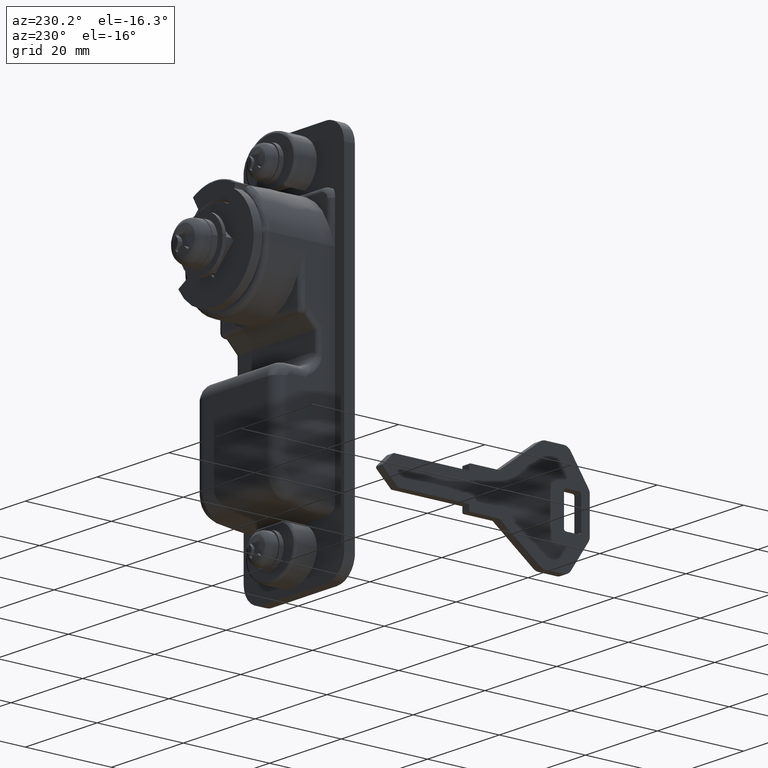
[diagram: clean part render]
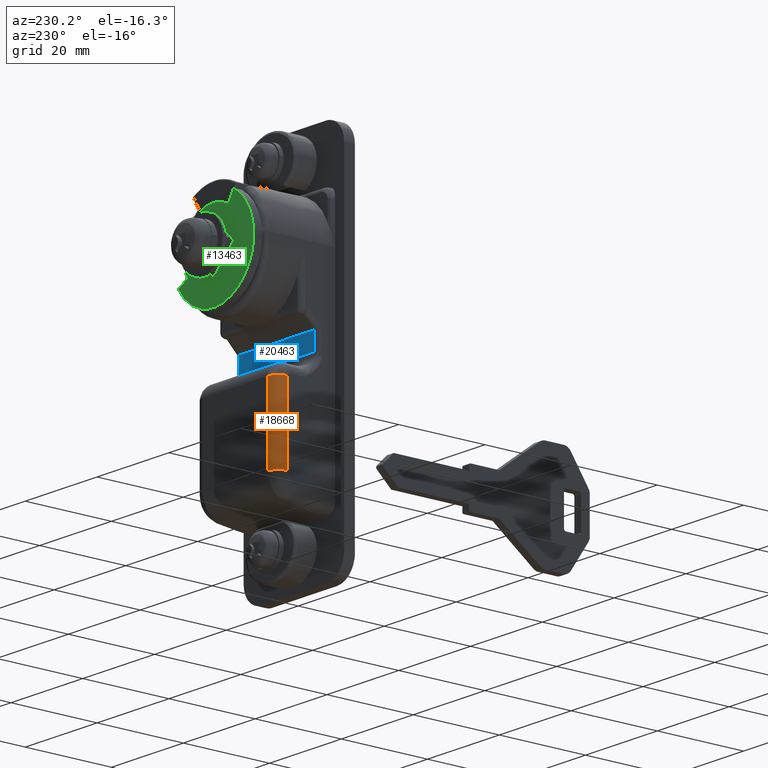
[diagram: same view with three faces highlighted in distinct colors, each labeled with its STEP entity id]
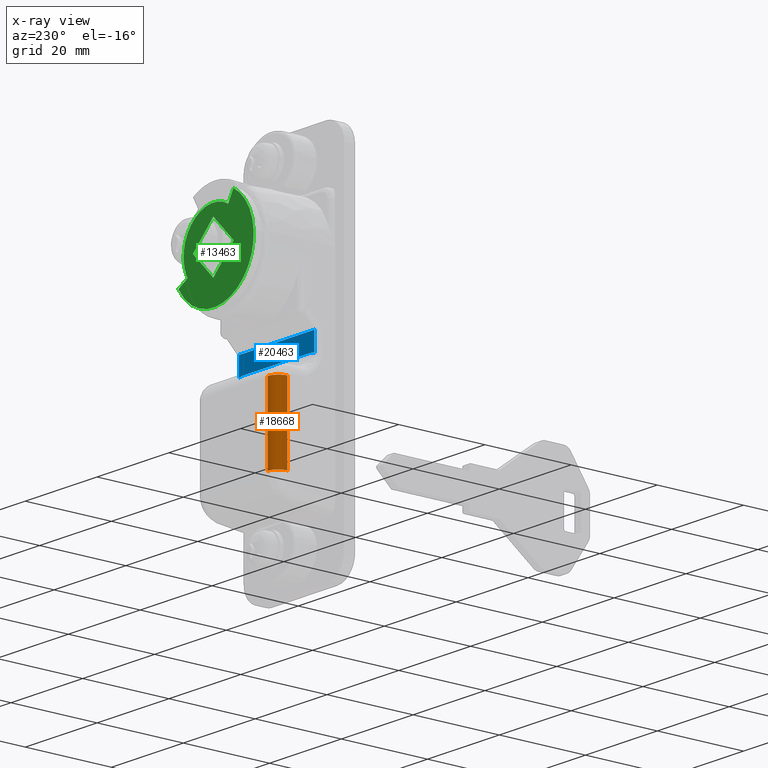
[diagram: x-ray of the same camera — body ghosted, the three highlighted faces saturated]
A machine part, auxiliary view with three faces highlighted in distinct colors.
The next image is the same camera in x-ray (body ghosted, the three faces saturated) — at least one of them is partly hidden behind the body in this view.
Their STEP definitions:

[orange] entity #18668 — the highlighted face is a freeform B-spline surface patch.
#18578=CARTESIAN_POINT('',(14.600000000000000,9.0,-25.0));
#18579=VERTEX_POINT('',#18578);
#18593=CARTESIAN_POINT('',(12.100000000000000,11.500000000000000,-25.0));
#18594=VERTEX_POINT('',#18593);
#18595=CARTESIAN_POINT('',(14.600000000000000,9.0,-25.0));
#18596=CARTESIAN_POINT('',(14.600000000000009,11.500000000000000,-25.0));
#18597=CARTESIAN_POINT('',(12.100000000000000,11.500000000000000,-25.0));
#18605=(BOUNDED_CURVE()B_SPLINE_CURVE(2,(#18595,#18596,#18597),.UNSPECIFIED.,.F.,.U.)CURVE()GEOMETRIC_REPRESENTATION_ITEM()QUASI_UNIFORM_CURVE()RATIONAL_B_SPLINE_CURVE((1.0,0.707106781186548,1.0))REPRESENTATION_ITEM(''));
#18606=EDGE_CURVE('',#18579,#18594,#18605,.T.);
#18624=CARTESIAN_POINT('',(12.034557629230310,11.499143312438891,-43.082447091428243));
#18625=CARTESIAN_POINT('',(12.034557629230310,11.499143312438891,-24.547938822714290));
#18626=CARTESIAN_POINT('',(14.761893971485295,11.570561127989979,-43.082447091428243));
#18627=CARTESIAN_POINT('',(14.761893971485295,11.570561127989979,-24.547938822714297));
#18628=CARTESIAN_POINT('',(14.595336996054669,8.847378651162860,-43.082447091428243));
#18629=CARTESIAN_POINT('',(14.595336996054669,8.847378651162860,-24.547938822714290));
#18637=(BOUNDED_SURFACE()B_SPLINE_SURFACE(1,2,((#18624,#18626,#18628),(#18625,#18627,#18629)),.UNSPECIFIED.,.F.,.F.,.U.)B_SPLINE_SURFACE_WITH_KNOTS((2,2),(3,3),(0.0,18.534508268713950),(0.0,4.400105308918334),.UNSPECIFIED.)GEOMETRIC_REPRESENTATION_ITEM()RATIONAL_B_SPLINE_SURFACE(((1.0,0.675590207615660,1.0),(1.0,0.675590207615660,1.0)))REPRESENTATION_ITEM('')SURFACE());
#18638=CARTESIAN_POINT('',(14.600000000000000,9.0,-42.641411796515349));
#18639=VERTEX_POINT('',#18638);
#18640=CARTESIAN_POINT('',(12.100000000000000,11.500000000000000,-42.641411796515349));
#18641=VERTEX_POINT('',#18640);
#18642=CARTESIAN_POINT('',(14.600000000000000,9.0,-42.641411796515349));
#18643=CARTESIAN_POINT('',(14.600000000000009,11.500000000000000,-42.641411796515349));
#18644=CARTESIAN_POINT('',(12.100000000000000,11.500000000000000,-42.641411796515349));
#18652=(BOUNDED_CURVE()B_SPLINE_CURVE(2,(#18642,#18643,#18644),.UNSPECIFIED.,.F.,.U.)CURVE()GEOMETRIC_REPRESENTATION_ITEM()QUASI_UNIFORM_CURVE()RATIONAL_B_SPLINE_CURVE((1.0,0.707106781186548,1.0))REPRESENTATION_ITEM(''));
#18653=EDGE_CURVE('',#18639,#18641,#18652,.T.);
#18654=ORIENTED_EDGE('',*,*,#18653,.T.);
#18655=CARTESIAN_POINT('',(12.100000000000000,11.500000000000000,-25.0));
#18656=CARTESIAN_POINT('',(12.100000000000000,11.500000000000000,-42.641411796515349));
#18657=QUASI_UNIFORM_CURVE('',1,(#18655,#18656),.UNSPECIFIED.,.F.,.U.);
#18658=EDGE_CURVE('',#18594,#18641,#18657,.T.);
#18659=ORIENTED_EDGE('',*,*,#18658,.F.);
#18660=ORIENTED_EDGE('',*,*,#18606,.F.);
#18661=CARTESIAN_POINT('',(14.600000000000000,9.0,-42.641411796515349));
#18662=CARTESIAN_POINT('',(14.600000000000000,9.0,-25.0));
#18663=QUASI_UNIFORM_CURVE('',1,(#18661,#18662),.UNSPECIFIED.,.F.,.U.);
#18664=EDGE_CURVE('',#18639,#18579,#18663,.T.);
#18665=ORIENTED_EDGE('',*,*,#18664,.F.);
#18666=EDGE_LOOP('',(#18654,#18659,#18660,#18665));
#18667=FACE_OUTER_BOUND('',#18666,.T.);
#18668=ADVANCED_FACE('',(#18667),#18637,.T.);

[blue] entity #20463 — the highlighted face is a freeform B-spline surface patch.
#16731=CARTESIAN_POINT('',(5.0,-10.500000000000000,-19.208497377870799));
#16732=VERTEX_POINT('',#16731);
#16798=CARTESIAN_POINT('',(5.0,-10.500000000000000,-14.950462000000099));
#16799=VERTEX_POINT('',#16798);
#16823=CARTESIAN_POINT('',(5.0,-10.500000000000000,-14.950462000000099));
#16824=CARTESIAN_POINT('',(5.0,-10.500000000000000,-19.208497377870799));
#16825=QUASI_UNIFORM_CURVE('',1,(#16823,#16824),.UNSPECIFIED.,.F.,.U.);
#16826=EDGE_CURVE('',#16799,#16732,#16825,.T.);
#17135=CARTESIAN_POINT('',(5.0,10.500000000000000,-19.208497377870799));
#17136=VERTEX_POINT('',#17135);
#17242=CARTESIAN_POINT('',(5.0,10.500000000000000,-14.950462000000099));
#17243=VERTEX_POINT('',#17242);
#17257=CARTESIAN_POINT('',(5.0,10.500000000000000,-19.208497377870799));
#17258=CARTESIAN_POINT('',(5.0,10.500000000000000,-14.950462000000099));
#17259=QUASI_UNIFORM_CURVE('',1,(#17257,#17258),.UNSPECIFIED.,.F.,.U.);
#17260=EDGE_CURVE('',#17136,#17243,#17259,.T.);
#18811=CARTESIAN_POINT('',(5.0,9.0,-19.0));
#18812=VERTEX_POINT('',#18811);
#18813=CARTESIAN_POINT('',(5.0,9.0,-19.0));
#18814=CARTESIAN_POINT('',(5.000000000000001,9.764490385526335,-19.000000000000004));
#18815=CARTESIAN_POINT('',(5.0,10.500000000000000,-19.208497377870820));
#18823=(BOUNDED_CURVE()B_SPLINE_CURVE(2,(#18813,#18814,#18815),.UNSPECIFIED.,.F.,.U.)CURVE()GEOMETRIC_REPRESENTATION_ITEM()QUASI_UNIFORM_CURVE()RATIONAL_B_SPLINE_CURVE((1.0,0.990477507528987,1.0))REPRESENTATION_ITEM(''));
#18824=EDGE_CURVE('',#18812,#17136,#18823,.T.);
#18856=CARTESIAN_POINT('',(5.0,-9.000000000000130,-19.0));
#18857=VERTEX_POINT('',#18856);
#18879=CARTESIAN_POINT('',(5.0,-9.000000000000130,-19.0));
#18880=CARTESIAN_POINT('',(5.0,9.0,-19.0));
#18881=QUASI_UNIFORM_CURVE('',1,(#18879,#18880),.UNSPECIFIED.,.F.,.U.);
#18882=EDGE_CURVE('',#18857,#18812,#18881,.T.);
#18904=CARTESIAN_POINT('',(5.0,-10.500000000000000,-19.208497377870788));
#18905=CARTESIAN_POINT('',(4.999999999999999,-9.764490385526390,-19.0));
#18906=CARTESIAN_POINT('',(5.0,-9.000000000000108,-19.0));
#18914=(BOUNDED_CURVE()B_SPLINE_CURVE(2,(#18904,#18905,#18906),.UNSPECIFIED.,.F.,.U.)CURVE()GEOMETRIC_REPRESENTATION_ITEM()QUASI_UNIFORM_CURVE()RATIONAL_B_SPLINE_CURVE((1.0,0.990477507528988,1.0))REPRESENTATION_ITEM(''));
#18915=EDGE_CURVE('',#16732,#18857,#18914,.T.);
#20390=CARTESIAN_POINT('',(5.0,-10.500000000000000,-14.950462000000099));
#20391=CARTESIAN_POINT('',(5.0,10.500000000000000,-14.950462000000099));
#20392=QUASI_UNIFORM_CURVE('',1,(#20390,#20391),.UNSPECIFIED.,.F.,.U.);
#20393=EDGE_CURVE('',#16799,#17243,#20392,.T.);
#20450=CARTESIAN_POINT('',(5.0,-11.548949959297930,-19.421186901043480));
#20451=CARTESIAN_POINT('',(5.0,-11.548949959297930,-14.737773314363089));
#20452=CARTESIAN_POINT('',(5.0,11.548950522561819,-19.421186901043480));
#20453=CARTESIAN_POINT('',(5.0,11.548950522561819,-14.737773314363089));
#20454=B_SPLINE_SURFACE_WITH_KNOTS('',1,1,((#20450,#20452),(#20451,#20453)),.UNSPECIFIED.,.F.,.F.,.U.,(2,2),(2,2),(0.0,4.683413586680386),(0.0,23.097900481859750),.UNSPECIFIED.);
#20455=ORIENTED_EDGE('',*,*,#18824,.T.);
#20456=ORIENTED_EDGE('',*,*,#17260,.T.);
#20457=ORIENTED_EDGE('',*,*,#20393,.F.);
#20458=ORIENTED_EDGE('',*,*,#16826,.T.);
#20459=ORIENTED_EDGE('',*,*,#18915,.T.);
#20460=ORIENTED_EDGE('',*,*,#18882,.T.);
#20461=EDGE_LOOP('',(#20455,#20456,#20457,#20458,#20459,#20460));
#20462=FACE_OUTER_BOUND('',#20461,.T.);
#20463=ADVANCED_FACE('',(#20462),#20454,.F.);

[green] entity #13463 — the highlighted face is a freeform B-spline surface patch.
#13376=CARTESIAN_POINT('',(19.699999999999999,-10.790605036627600,10.790602913902500));
#13377=CARTESIAN_POINT('',(19.699999999999999,12.282401201314251,10.790602913902500));
#13378=CARTESIAN_POINT('',(19.699999999999999,-10.790605036627600,-12.282399924454330));
#13379=CARTESIAN_POINT('',(19.699999999999999,12.282401201314251,-12.282399924454330));
#13380=B_SPLINE_SURFACE_WITH_KNOTS('',1,1,((#13376,#13378),(#13377,#13379)),.UNSPECIFIED.,.F.,.F.,.U.,(2,2),(2,2),(0.0,23.073006237941851),(0.0,23.073002838356832),.UNSPECIFIED.);
#13381=CARTESIAN_POINT('',(19.699999999999999,4.150000000000000,7.188010851410840));
#13382=VERTEX_POINT('',#13381);
#13383=CARTESIAN_POINT('',(19.699999999999999,5.625003409261810,9.742783824235911));
#13384=VERTEX_POINT('',#13383);
#13385=CARTESIAN_POINT('',(19.699999999999999,4.150000000000000,7.188010851410840));
#13386=CARTESIAN_POINT('',(19.699999999999999,5.625003409261810,9.742783824235911));
#13387=QUASI_UNIFORM_CURVE('',1,(#13385,#13386),.UNSPECIFIED.,.F.,.U.);
#13388=EDGE_CURVE('',#13382,#13384,#13387,.T.);
#13389=ORIENTED_EDGE('',*,*,#13388,.F.);
#13390=CARTESIAN_POINT('',(19.699999999999999,-7.188010000000079,-4.150000000000090));
#13391=VERTEX_POINT('',#13390);
#13392=CARTESIAN_POINT('',(19.699999999999999,4.150000000000004,7.188010851410838));
#13393=CARTESIAN_POINT('',(19.699999999999999,-1.365554862608732,10.372417936068144));
#13394=CARTESIAN_POINT('',(19.699999999999999,-5.868986434357962,5.868986133338724));
#13395=CARTESIAN_POINT('',(19.699999999999999,-10.372418006107187,1.365554330609306));
#13396=CARTESIAN_POINT('',(19.699999999999999,-7.188010000000079,-4.150000000000090));
#13404=(BOUNDED_CURVE()B_SPLINE_CURVE(2,(#13392,#13393,#13394,#13395,#13396),.UNSPECIFIED.,.F.,.U.)B_SPLINE_CURVE_WITH_KNOTS((3,2,3),(0.0,0.500000000000000,1.0),.UNSPECIFIED.)CURVE()GEOMETRIC_REPRESENTATION_ITEM()RATIONAL_B_SPLINE_CURVE((1.0,0.793353332485419,1.0,0.793353332485419,1.0))REPRESENTATION_ITEM(''));
#13405=EDGE_CURVE('',#13382,#13391,#13404,.T.);
#13406=ORIENTED_EDGE('',*,*,#13405,.T.);
#13407=CARTESIAN_POINT('',(19.699999999999999,-9.742785792574930,-5.625000000000000));
#13408=VERTEX_POINT('',#13407);
#13409=CARTESIAN_POINT('',(19.699999999999999,-9.742785792574930,-5.625000000000000));
#13410=CARTESIAN_POINT('',(19.699999999999999,-7.188010000000079,-4.150000000000090));
#13411=QUASI_UNIFORM_CURVE('',1,(#13409,#13410),.UNSPECIFIED.,.F.,.U.);
#13412=EDGE_CURVE('',#13408,#13391,#13411,.T.);
#13413=ORIENTED_EDGE('',*,*,#13412,.F.);
#13414=CARTESIAN_POINT('',(19.699999999999999,-9.742785792574933,-5.625000000000003));
#13415=CARTESIAN_POINT('',(19.699999999999999,-5.804118879044665,-12.446971208324907));
#13416=CARTESIAN_POINT('',(19.699999999999999,1.953540706462997,-11.079087449252849));
#13417=CARTESIAN_POINT('',(19.699999999999999,9.711200291970656,-9.711203690180790));
#13418=CARTESIAN_POINT('',(19.699999999999999,11.079086765655870,-1.953544583332838));
#13419=CARTESIAN_POINT('',(19.699999999999999,12.446973239341082,5.804114523515125));
#13420=CARTESIAN_POINT('',(19.699999999999999,5.625003409261813,9.742783824235914));
#13428=(BOUNDED_CURVE()B_SPLINE_CURVE(2,(#13414,#13415,#13416,#13417,#13418,#13419,#13420),.UNSPECIFIED.,.F.,.U.)B_SPLINE_CURVE_WITH_KNOTS((3,2,2,3),(0.0,0.333333333333333,0.666666666666667,1.0),.UNSPECIFIED.)CURVE()GEOMETRIC_REPRESENTATION_ITEM()RATIONAL_B_SPLINE_CURVE((1.0,0.819152077740621,1.0,0.819152077740621,1.0,0.819152077740621,1.0))REPRESENTATION_ITEM(''));
#13429=EDGE_CURVE('',#13408,#13384,#13428,.T.);
#13430=ORIENTED_EDGE('',*,*,#13429,.T.);
#13431=EDGE_LOOP('',(#13389,#13406,#13413,#13430));
#13432=FACE_OUTER_BOUND('',#13431,.T.);
#13433=CARTESIAN_POINT('',(19.699999999999999,-5.656854249492380,4.440892E-016));
#13434=VERTEX_POINT('',#13433);
#13435=CARTESIAN_POINT('',(19.699999999999999,0.0,5.656854249492380));
#13436=VERTEX_POINT('',#13435);
#13437=CARTESIAN_POINT('',(19.699999999999999,-5.656854249492380,4.440892E-016));
#13438=CARTESIAN_POINT('',(19.699999999999999,0.0,5.656854249492380));
#13439=QUASI_UNIFORM_CURVE('',1,(#13437,#13438),.UNSPECIFIED.,.F.,.U.);
#13440=EDGE_CURVE('',#13434,#13436,#13439,.T.);
#13441=ORIENTED_EDGE('',*,*,#13440,.T.);
#13442=CARTESIAN_POINT('',(19.699999999999999,5.656854249492380,-4.440892E-016));
#13443=VERTEX_POINT('',#13442);
#13444=CARTESIAN_POINT('',(19.699999999999999,0.0,5.656854249492380));
#13445=CARTESIAN_POINT('',(19.699999999999999,5.656854249492380,-4.440892E-016));
#13446=QUASI_UNIFORM_CURVE('',1,(#13444,#13445),.UNSPECIFIED.,.F.,.U.);
#13447=EDGE_CURVE('',#13436,#13443,#13446,.T.);
#13448=ORIENTED_EDGE('',*,*,#13447,.T.);
#13449=CARTESIAN_POINT('',(19.699999999999999,-4.440892E-016,-5.656854249492380));
#13450=VERTEX_POINT('',#13449);
#13451=CARTESIAN_POINT('',(19.699999999999999,5.656854249492380,-4.440892E-016));
#13452=CARTESIAN_POINT('',(19.699999999999999,-4.440892E-016,-5.656854249492380));
#13453=QUASI_UNIFORM_CURVE('',1,(#13451,#13452),.UNSPECIFIED.,.F.,.U.);
#13454=EDGE_CURVE('',#13443,#13450,#13453,.T.);
#13455=ORIENTED_EDGE('',*,*,#13454,.T.);
#13456=CARTESIAN_POINT('',(19.699999999999999,-4.440892E-016,-5.656854249492380));
#13457=CARTESIAN_POINT('',(19.699999999999999,-5.656854249492380,4.440892E-016));
#13458=QUASI_UNIFORM_CURVE('',1,(#13456,#13457),.UNSPECIFIED.,.F.,.U.);
#13459=EDGE_CURVE('',#13450,#13434,#13458,.T.);
#13460=ORIENTED_EDGE('',*,*,#13459,.T.);
#13461=EDGE_LOOP('',(#13441,#13448,#13455,#13460));
#13462=FACE_BOUND('',#13461,.T.);
#13463=ADVANCED_FACE('',(#13432,#13462),#13380,.F.);